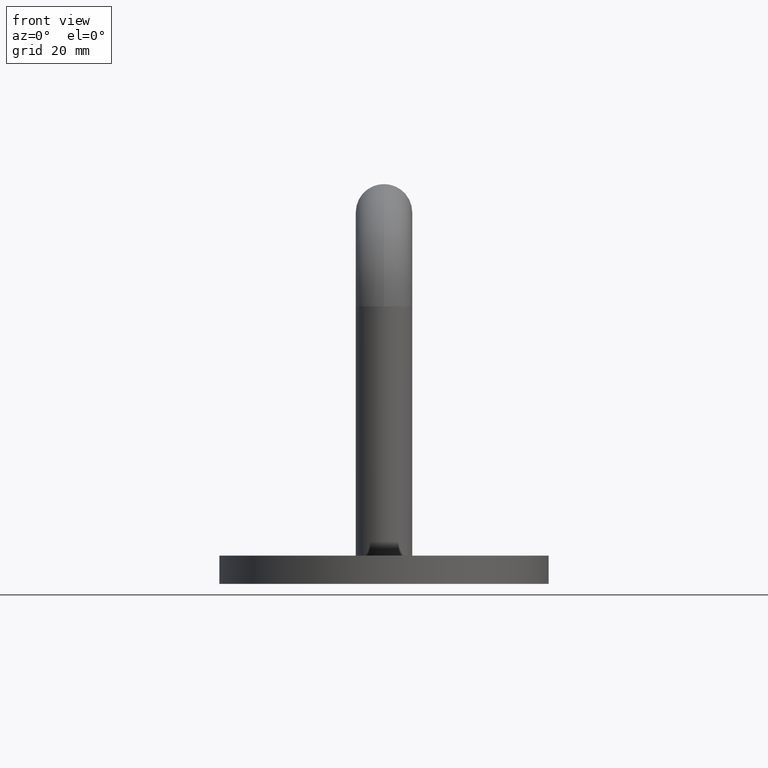
[diagram: clean part render]
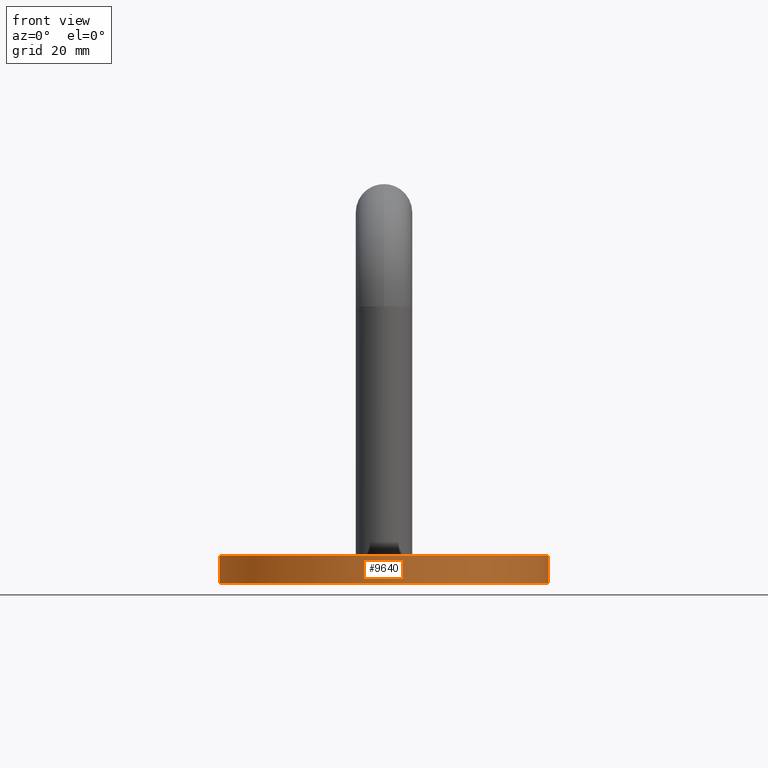
[diagram: same view with one face highlighted and labeled with its STEP entity id]
A machine part, front view. The second image highlights one B-rep face of the part: STEP entity #9640.
In plain terms, the highlighted cylindrical surface (partial cylindrical patch) has radius 35 mm, axis along (-0, -0, -1).
Its self-contained STEP definition (entity closure, byte-faithful):
#420 = CARTESIAN_POINT ( 'NONE',  ( -35.00000000000000700, 0.0000000000000000000, 0.0000000000000000000 ) ) ;
#504 = DIRECTION ( 'NONE',  ( -0.0000000000000000000, -0.0000000000000000000, -1.000000000000000000 ) ) ;
#813 = DIRECTION ( 'NONE',  ( -1.000000000000000000, 0.0000000000000000000, 0.0000000000000000000 ) ) ;
#1533 = VERTEX_POINT ( 'NONE', #10910 ) ;
#1816 = CIRCLE ( 'NONE', #1873, 35.00000000000000700 ) ;
#1873 = AXIS2_PLACEMENT_3D ( 'NONE', #14442, #3410, #12070 ) ;
#3309 = ORIENTED_EDGE ( 'NONE', *, *, #15448, .F. ) ;
#3371 = ORIENTED_EDGE ( 'NONE', *, *, #12784, .T. ) ;
#3410 = DIRECTION ( 'NONE',  ( 0.0000000000000000000, 0.0000000000000000000, 1.000000000000000000 ) ) ;
#3730 = EDGE_LOOP ( 'NONE', ( #3309, #9053, #3371, #10365 ) ) ;
#4469 = FACE_OUTER_BOUND ( 'NONE', #3730, .T. ) ;
#4511 = CARTESIAN_POINT ( 'NONE',  ( 0.0000000000000000000, 0.0000000000000000000, 6.000000000000000000 ) ) ;
#4737 = EDGE_CURVE ( 'NONE', #14904, #1533, #1816, .T. ) ;
#5165 = VERTEX_POINT ( 'NONE', #14498 ) ;
#5758 = EDGE_CURVE ( 'NONE', #9164, #5165, #7307, .T. ) ;
#6485 = LINE ( 'NONE', #14170, #9128 ) ;
#6516 = AXIS2_PLACEMENT_3D ( 'NONE', #15480, #15325, #11725 ) ;
#6888 = LINE ( 'NONE', #7197, #9932 ) ;
#7197 = CARTESIAN_POINT ( 'NONE',  ( -35.00000000000000700, 0.0000000000000000000, 6.000000000000000000 ) ) ;
#7307 = CIRCLE ( 'NONE', #6516, 35.00000000000000700 ) ;
#8399 = DIRECTION ( 'NONE',  ( -0.0000000000000000000, -0.0000000000000000000, -1.000000000000000000 ) ) ;
#9053 = ORIENTED_EDGE ( 'NONE', *, *, #5758, .F. ) ;
#9128 = VECTOR ( 'NONE', #504, 1000.000000000000000 ) ;
#9164 = VERTEX_POINT ( 'NONE', #14061 ) ;
#9640 = ADVANCED_FACE ( 'NONE', ( #4469 ), #11699, .T. ) ;
#9932 = VECTOR ( 'NONE', #8399, 1000.000000000000000 ) ;
#10092 = AXIS2_PLACEMENT_3D ( 'NONE', #4511, #10627, #813 ) ;
#10365 = ORIENTED_EDGE ( 'NONE', *, *, #4737, .T. ) ;
#10627 = DIRECTION ( 'NONE',  ( -0.0000000000000000000, -0.0000000000000000000, -1.000000000000000000 ) ) ;
#10910 = CARTESIAN_POINT ( 'NONE',  ( 35.00000000000000700, 4.286263797015737300E-015, 0.0000000000000000000 ) ) ;
#11699 = CYLINDRICAL_SURFACE ( 'NONE', #10092, 35.00000000000000700 ) ;
#11725 = DIRECTION ( 'NONE',  ( 1.000000000000000000, 0.0000000000000000000, 0.0000000000000000000 ) ) ;
#12070 = DIRECTION ( 'NONE',  ( 1.000000000000000000, 0.0000000000000000000, 0.0000000000000000000 ) ) ;
#12784 = EDGE_CURVE ( 'NONE', #9164, #14904, #6888, .T. ) ;
#14061 = CARTESIAN_POINT ( 'NONE',  ( -35.00000000000000700, 0.0000000000000000000, 6.000000000000000000 ) ) ;
#14170 = CARTESIAN_POINT ( 'NONE',  ( 35.00000000000000700, 4.286263797015737300E-015, 6.000000000000000000 ) ) ;
#14442 = CARTESIAN_POINT ( 'NONE',  ( 0.0000000000000000000, 0.0000000000000000000, 0.0000000000000000000 ) ) ;
#14498 = CARTESIAN_POINT ( 'NONE',  ( 35.00000000000000700, 4.286263797015737300E-015, 6.000000000000000000 ) ) ;
#14904 = VERTEX_POINT ( 'NONE', #420 ) ;
#15325 = DIRECTION ( 'NONE',  ( 0.0000000000000000000, 0.0000000000000000000, 1.000000000000000000 ) ) ;
#15448 = EDGE_CURVE ( 'NONE', #5165, #1533, #6485, .T. ) ;
#15480 = CARTESIAN_POINT ( 'NONE',  ( 0.0000000000000000000, 0.0000000000000000000, 6.000000000000000000 ) ) ;